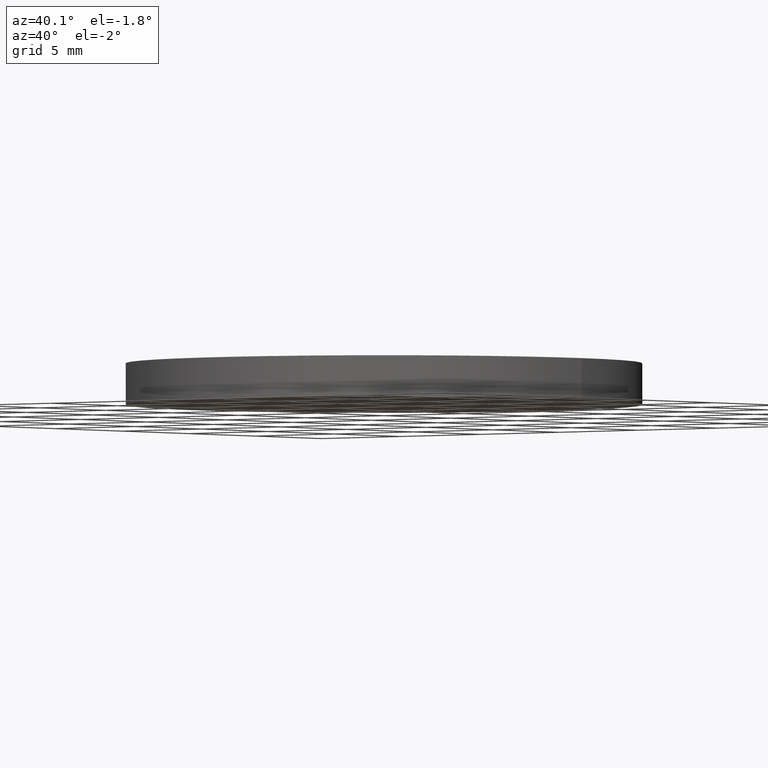
[diagram: clean part render]
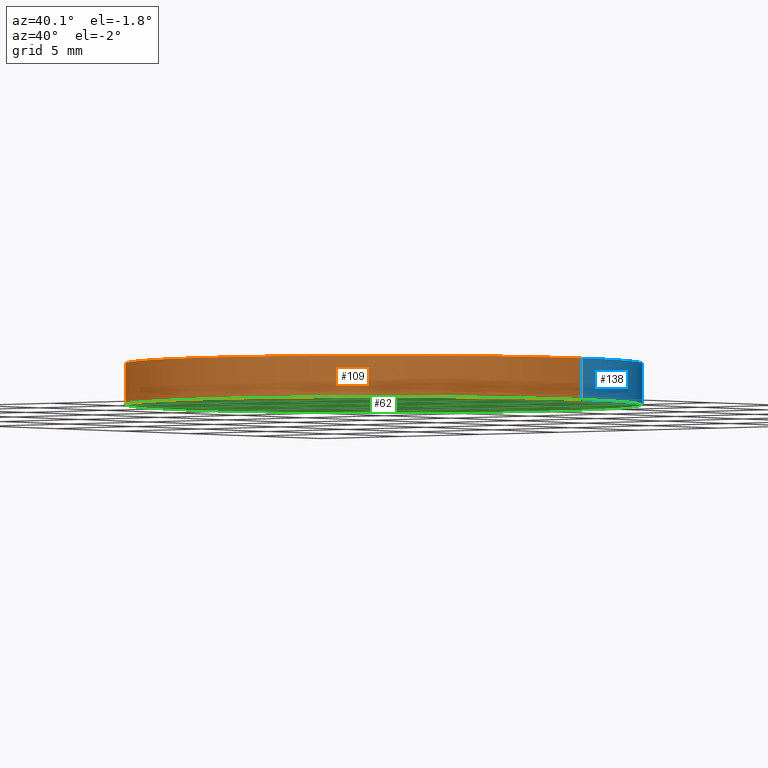
[diagram: same view with three faces highlighted in distinct colors, each labeled with its STEP entity id]
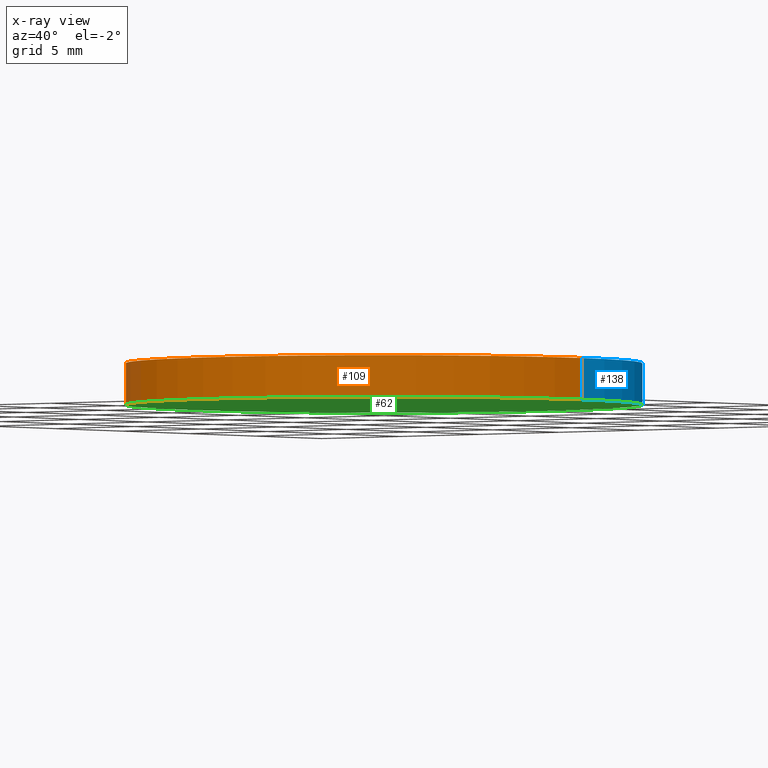
[diagram: x-ray of the same camera — body ghosted, the three highlighted faces saturated]
A machine part, auxiliary view with three faces highlighted in distinct colors.
The next image is the same camera in x-ray (body ghosted, the three faces saturated) — at least one of them is partly hidden behind the body in this view.
Their STEP definitions:

[orange] entity #109 — the highlighted cylindrical surface (partial cylindrical patch) has radius 12.5 mm, axis along (-0, -0, -1).
#6 = CARTESIAN_POINT ( 'NONE',  ( 12.50000000000000000, 1.530808498934191500E-015, 0.0000000000000000000 ) ) ;
#8 = VERTEX_POINT ( 'NONE', #6 ) ;
#19 = LINE ( 'NONE', #48, #103 ) ;
#20 = EDGE_CURVE ( 'NONE', #21, #8, #19, .T. ) ;
#21 = VERTEX_POINT ( 'NONE', #38 ) ;
#25 = ORIENTED_EDGE ( 'NONE', *, *, #20, .F. ) ;
#26 = DIRECTION ( 'NONE',  ( 0.0000000000000000000, 0.0000000000000000000, 1.000000000000000000 ) ) ;
#28 = CARTESIAN_POINT ( 'NONE',  ( -12.50000000000000000, 0.0000000000000000000, 2.000000000000000000 ) ) ;
#29 = LINE ( 'NONE', #28, #116 ) ;
#36 = DIRECTION ( 'NONE',  ( 1.000000000000000000, 0.0000000000000000000, 0.0000000000000000000 ) ) ;
#38 = CARTESIAN_POINT ( 'NONE',  ( 12.50000000000000000, 1.530808498934191500E-015, 2.000000000000000000 ) ) ;
#40 = CYLINDRICAL_SURFACE ( 'NONE', #102, 12.50000000000000000 ) ;
#43 = DIRECTION ( 'NONE',  ( 0.0000000000000000000, 0.0000000000000000000, 1.000000000000000000 ) ) ;
#46 = DIRECTION ( 'NONE',  ( 1.000000000000000000, 0.0000000000000000000, 0.0000000000000000000 ) ) ;
#47 = EDGE_CURVE ( 'NONE', #74, #119, #29, .T. ) ;
#48 = CARTESIAN_POINT ( 'NONE',  ( 12.50000000000000000, 1.530808498934191500E-015, 2.000000000000000000 ) ) ;
#50 = ORIENTED_EDGE ( 'NONE', *, *, #137, .F. ) ;
#51 = AXIS2_PLACEMENT_3D ( 'NONE', #54, #26, #46 ) ;
#54 = CARTESIAN_POINT ( 'NONE',  ( 0.0000000000000000000, 0.0000000000000000000, 2.000000000000000000 ) ) ;
#72 = ORIENTED_EDGE ( 'NONE', *, *, #47, .T. ) ;
#74 = VERTEX_POINT ( 'NONE', #82 ) ;
#79 = CARTESIAN_POINT ( 'NONE',  ( 0.0000000000000000000, 0.0000000000000000000, 0.0000000000000000000 ) ) ;
#81 = AXIS2_PLACEMENT_3D ( 'NONE', #79, #43, #36 ) ;
#82 = CARTESIAN_POINT ( 'NONE',  ( -12.50000000000000000, 0.0000000000000000000, 2.000000000000000000 ) ) ;
#86 = EDGE_CURVE ( 'NONE', #119, #8, #115, .T. ) ;
#89 = CARTESIAN_POINT ( 'NONE',  ( 0.0000000000000000000, 0.0000000000000000000, 2.000000000000000000 ) ) ;
#90 = CARTESIAN_POINT ( 'NONE',  ( -12.50000000000000000, 0.0000000000000000000, 0.0000000000000000000 ) ) ;
#93 = DIRECTION ( 'NONE',  ( -0.0000000000000000000, -0.0000000000000000000, -1.000000000000000000 ) ) ;
#99 = DIRECTION ( 'NONE',  ( -1.000000000000000000, 0.0000000000000000000, 0.0000000000000000000 ) ) ;
#102 = AXIS2_PLACEMENT_3D ( 'NONE', #89, #113, #99 ) ;
#103 = VECTOR ( 'NONE', #106, 1000.000000000000000 ) ;
#106 = DIRECTION ( 'NONE',  ( -0.0000000000000000000, -0.0000000000000000000, -1.000000000000000000 ) ) ;
#109 = ADVANCED_FACE ( 'NONE', ( #128 ), #40, .T. ) ;
#113 = DIRECTION ( 'NONE',  ( -0.0000000000000000000, -0.0000000000000000000, -1.000000000000000000 ) ) ;
#115 = CIRCLE ( 'NONE', #81, 12.50000000000000000 ) ;
#116 = VECTOR ( 'NONE', #93, 1000.000000000000000 ) ;
#119 = VERTEX_POINT ( 'NONE', #90 ) ;
#120 = CIRCLE ( 'NONE', #51, 12.50000000000000000 ) ;
#128 = FACE_OUTER_BOUND ( 'NONE', #136, .T. ) ;
#136 = EDGE_LOOP ( 'NONE', ( #25, #50, #72, #139 ) ) ;
#137 = EDGE_CURVE ( 'NONE', #74, #21, #120, .T. ) ;
#139 = ORIENTED_EDGE ( 'NONE', *, *, #86, .T. ) ;

[blue] entity #138 — the highlighted cylindrical surface (partial cylindrical patch) has radius 12.5 mm, axis along (-0, -0, -1).
#6 = CARTESIAN_POINT ( 'NONE',  ( 12.50000000000000000, 1.530808498934191500E-015, 0.0000000000000000000 ) ) ;
#7 = DIRECTION ( 'NONE',  ( 0.0000000000000000000, 0.0000000000000000000, 1.000000000000000000 ) ) ;
#8 = VERTEX_POINT ( 'NONE', #6 ) ;
#10 = CYLINDRICAL_SURFACE ( 'NONE', #56, 12.50000000000000000 ) ;
#15 = DIRECTION ( 'NONE',  ( 0.0000000000000000000, 0.0000000000000000000, 1.000000000000000000 ) ) ;
#19 = LINE ( 'NONE', #48, #103 ) ;
#20 = EDGE_CURVE ( 'NONE', #21, #8, #19, .T. ) ;
#21 = VERTEX_POINT ( 'NONE', #38 ) ;
#22 = ORIENTED_EDGE ( 'NONE', *, *, #96, .T. ) ;
#28 = CARTESIAN_POINT ( 'NONE',  ( -12.50000000000000000, 0.0000000000000000000, 2.000000000000000000 ) ) ;
#29 = LINE ( 'NONE', #28, #116 ) ;
#32 = DIRECTION ( 'NONE',  ( -1.000000000000000000, 0.0000000000000000000, 0.0000000000000000000 ) ) ;
#33 = FACE_OUTER_BOUND ( 'NONE', #132, .T. ) ;
#38 = CARTESIAN_POINT ( 'NONE',  ( 12.50000000000000000, 1.530808498934191500E-015, 2.000000000000000000 ) ) ;
#39 = EDGE_CURVE ( 'NONE', #21, #74, #127, .T. ) ;
#42 = ORIENTED_EDGE ( 'NONE', *, *, #20, .T. ) ;
#47 = EDGE_CURVE ( 'NONE', #74, #119, #29, .T. ) ;
#48 = CARTESIAN_POINT ( 'NONE',  ( 12.50000000000000000, 1.530808498934191500E-015, 2.000000000000000000 ) ) ;
#56 = AXIS2_PLACEMENT_3D ( 'NONE', #77, #105, #32 ) ;
#60 = ORIENTED_EDGE ( 'NONE', *, *, #39, .F. ) ;
#65 = DIRECTION ( 'NONE',  ( 1.000000000000000000, 0.0000000000000000000, 0.0000000000000000000 ) ) ;
#68 = AXIS2_PLACEMENT_3D ( 'NONE', #69, #7, #83 ) ;
#69 = CARTESIAN_POINT ( 'NONE',  ( 0.0000000000000000000, 0.0000000000000000000, 2.000000000000000000 ) ) ;
#74 = VERTEX_POINT ( 'NONE', #82 ) ;
#75 = AXIS2_PLACEMENT_3D ( 'NONE', #92, #15, #65 ) ;
#77 = CARTESIAN_POINT ( 'NONE',  ( 0.0000000000000000000, 0.0000000000000000000, 2.000000000000000000 ) ) ;
#82 = CARTESIAN_POINT ( 'NONE',  ( -12.50000000000000000, 0.0000000000000000000, 2.000000000000000000 ) ) ;
#83 = DIRECTION ( 'NONE',  ( 1.000000000000000000, 0.0000000000000000000, 0.0000000000000000000 ) ) ;
#84 = CIRCLE ( 'NONE', #75, 12.50000000000000000 ) ;
#88 = ORIENTED_EDGE ( 'NONE', *, *, #47, .F. ) ;
#90 = CARTESIAN_POINT ( 'NONE',  ( -12.50000000000000000, 0.0000000000000000000, 0.0000000000000000000 ) ) ;
#92 = CARTESIAN_POINT ( 'NONE',  ( 0.0000000000000000000, 0.0000000000000000000, 0.0000000000000000000 ) ) ;
#93 = DIRECTION ( 'NONE',  ( -0.0000000000000000000, -0.0000000000000000000, -1.000000000000000000 ) ) ;
#96 = EDGE_CURVE ( 'NONE', #8, #119, #84, .T. ) ;
#103 = VECTOR ( 'NONE', #106, 1000.000000000000000 ) ;
#105 = DIRECTION ( 'NONE',  ( -0.0000000000000000000, -0.0000000000000000000, -1.000000000000000000 ) ) ;
#106 = DIRECTION ( 'NONE',  ( -0.0000000000000000000, -0.0000000000000000000, -1.000000000000000000 ) ) ;
#116 = VECTOR ( 'NONE', #93, 1000.000000000000000 ) ;
#119 = VERTEX_POINT ( 'NONE', #90 ) ;
#127 = CIRCLE ( 'NONE', #68, 12.50000000000000000 ) ;
#132 = EDGE_LOOP ( 'NONE', ( #60, #42, #22, #88 ) ) ;
#138 = ADVANCED_FACE ( 'NONE', ( #33 ), #10, .T. ) ;

[green] entity #62 — the highlighted planar face has unit normal (0, 0, 1).
#6 = CARTESIAN_POINT ( 'NONE',  ( 12.50000000000000000, 1.530808498934191500E-015, 0.0000000000000000000 ) ) ;
#8 = VERTEX_POINT ( 'NONE', #6 ) ;
#14 = AXIS2_PLACEMENT_3D ( 'NONE', #107, #66, #140 ) ;
#15 = DIRECTION ( 'NONE',  ( 0.0000000000000000000, 0.0000000000000000000, 1.000000000000000000 ) ) ;
#30 = ORIENTED_EDGE ( 'NONE', *, *, #96, .F. ) ;
#35 = ORIENTED_EDGE ( 'NONE', *, *, #86, .F. ) ;
#36 = DIRECTION ( 'NONE',  ( 1.000000000000000000, 0.0000000000000000000, 0.0000000000000000000 ) ) ;
#43 = DIRECTION ( 'NONE',  ( 0.0000000000000000000, 0.0000000000000000000, 1.000000000000000000 ) ) ;
#59 = PLANE ( 'NONE',  #14 ) ;
#62 = ADVANCED_FACE ( 'NONE', ( #104 ), #59, .F. ) ;
#65 = DIRECTION ( 'NONE',  ( 1.000000000000000000, 0.0000000000000000000, 0.0000000000000000000 ) ) ;
#66 = DIRECTION ( 'NONE',  ( 0.0000000000000000000, 0.0000000000000000000, 1.000000000000000000 ) ) ;
#75 = AXIS2_PLACEMENT_3D ( 'NONE', #92, #15, #65 ) ;
#79 = CARTESIAN_POINT ( 'NONE',  ( 0.0000000000000000000, 0.0000000000000000000, 0.0000000000000000000 ) ) ;
#81 = AXIS2_PLACEMENT_3D ( 'NONE', #79, #43, #36 ) ;
#84 = CIRCLE ( 'NONE', #75, 12.50000000000000000 ) ;
#86 = EDGE_CURVE ( 'NONE', #119, #8, #115, .T. ) ;
#90 = CARTESIAN_POINT ( 'NONE',  ( -12.50000000000000000, 0.0000000000000000000, 0.0000000000000000000 ) ) ;
#92 = CARTESIAN_POINT ( 'NONE',  ( 0.0000000000000000000, 0.0000000000000000000, 0.0000000000000000000 ) ) ;
#95 = EDGE_LOOP ( 'NONE', ( #35, #30 ) ) ;
#96 = EDGE_CURVE ( 'NONE', #8, #119, #84, .T. ) ;
#104 = FACE_OUTER_BOUND ( 'NONE', #95, .T. ) ;
#107 = CARTESIAN_POINT ( 'NONE',  ( 0.0000000000000000000, 0.0000000000000000000, 0.0000000000000000000 ) ) ;
#115 = CIRCLE ( 'NONE', #81, 12.50000000000000000 ) ;
#119 = VERTEX_POINT ( 'NONE', #90 ) ;
#140 = DIRECTION ( 'NONE',  ( 1.000000000000000000, 0.0000000000000000000, -0.0000000000000000000 ) ) ;